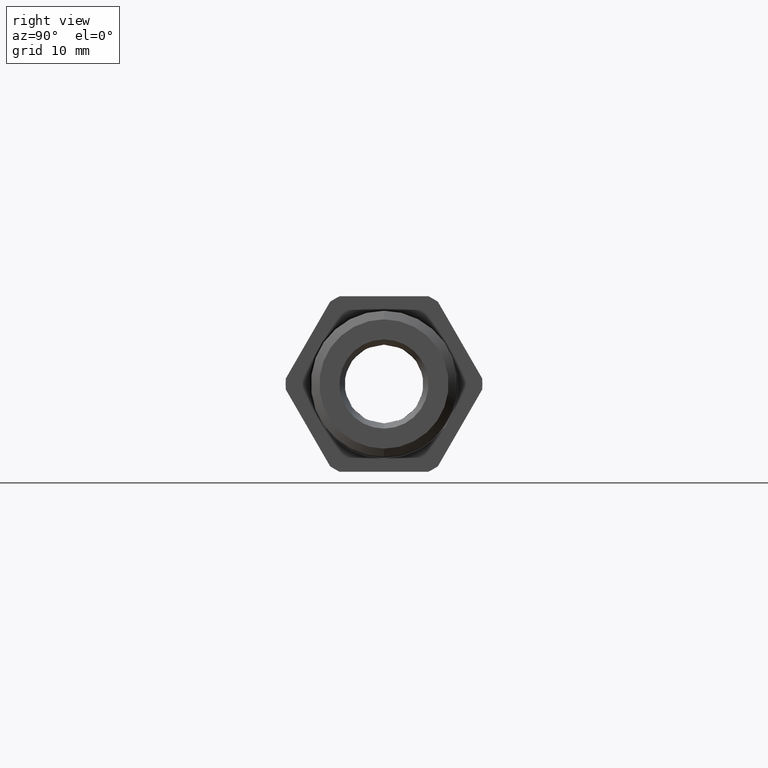
[diagram: clean part render]
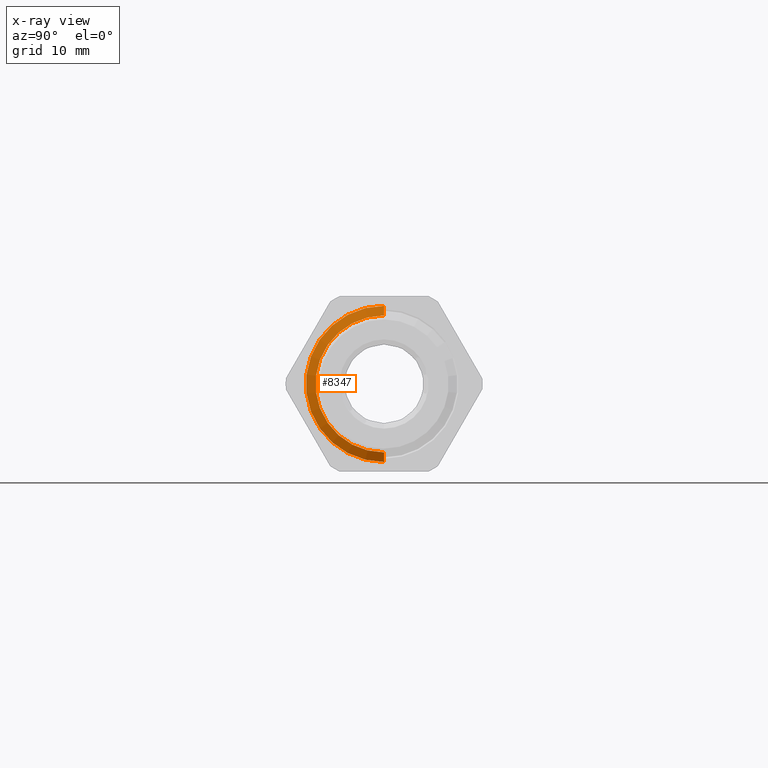
[diagram: x-ray — body ghosted, one internal face saturated and labeled with its STEP entity id]
A machine part, right view, then the same camera in x-ray: the body is ghosted and one INTERNAL B-rep face — a face not visible from any outside direction — is saturated and labeled: STEP entity #8347.
In plain terms, the highlighted conical surface has half-angle 60 deg.
Its self-contained STEP definition (entity closure, byte-faithful):
#1715 = VERTEX_POINT ( 'NONE', #5398 ) ;
#1719 = EDGE_CURVE ( 'NONE', #1726, #1715, #5393, .T. ) ;
#1722 = VERTEX_POINT ( 'NONE', #5448 ) ;
#1723 = VERTEX_POINT ( 'NONE', #5447 ) ;
#1726 = VERTEX_POINT ( 'NONE', #5442 ) ;
#1737 = EDGE_CURVE ( 'NONE', #1723, #1722, #5487, .T. ) ;
#4192 = ORIENTED_EDGE ( 'NONE', *, *, #1737, .T. ) ;
#4200 = ORIENTED_EDGE ( 'NONE', *, *, #1719, .F. ) ;
#4202 = ORIENTED_EDGE ( 'NONE', *, *, #7125, .F. ) ;
#4256 = EDGE_LOOP ( 'NONE', ( #4200, #4202, #4192, #7935 ) ) ;
#5390 = DIRECTION ( 'NONE',  ( -0.4999999999999943400, 1.060575238724910900E-016, -0.8660254037844418200 ) ) ;
#5391 = VECTOR ( 'NONE', #5390, 39.37007874015748100 ) ;
#5392 = CARTESIAN_POINT ( 'NONE',  ( -0.1558333333333333000, 4.738158465901109900E-017, -0.3869000000000000200 ) ) ;
#5393 = LINE ( 'NONE', #5392, #5391 ) ;
#5398 = CARTESIAN_POINT ( 'NONE',  ( -0.1558333333333333000, 4.738158465901109900E-017, -0.3869000000000000200 ) ) ;
#5442 = CARTESIAN_POINT ( 'NONE',  ( -0.1283333461552116600, 0.0000000000000000000, -0.3392686249999999900 ) ) ;
#5447 = CARTESIAN_POINT ( 'NONE',  ( -0.1283333461552116600, 4.446500411237423700E-017, 0.3392686249999999900 ) ) ;
#5448 = CARTESIAN_POINT ( 'NONE',  ( -0.1558333333333333000, 0.0000000000000000000, 0.3869000000000000200 ) ) ;
#5484 = DIRECTION ( 'NONE',  ( -0.4999999999999943400, 0.0000000000000000000, 0.8660254037844418200 ) ) ;
#5485 = VECTOR ( 'NONE', #5484, 39.37007874015748100 ) ;
#5486 = CARTESIAN_POINT ( 'NONE',  ( -0.1558333333333333000, 0.0000000000000000000, 0.3869000000000000200 ) ) ;
#5487 = LINE ( 'NONE', #5486, #5485 ) ;
#6712 = DIRECTION ( 'NONE',  ( 0.0000000000000000000, 0.0000000000000000000, -1.000000000000000000 ) ) ;
#6713 = DIRECTION ( 'NONE',  ( 1.000000000000000000, 0.0000000000000000000, 0.0000000000000000000 ) ) ;
#6714 = CARTESIAN_POINT ( 'NONE',  ( -0.1283333461552116600, 0.0000000000000000000, 0.0000000000000000000 ) ) ;
#6715 = AXIS2_PLACEMENT_3D ( 'NONE', #6714, #6713, #6712 ) ;
#6716 = CIRCLE ( 'NONE', #6715, 0.3392686249999999900 ) ;
#6769 = CONICAL_SURFACE ( 'NONE', #6838, 0.3869000000000000200, 1.047197551196604300 ) ;
#6770 = FACE_OUTER_BOUND ( 'NONE', #4256, .T. ) ;
#6835 = DIRECTION ( 'NONE',  ( 0.0000000000000000000, 0.0000000000000000000, 1.000000000000000000 ) ) ;
#6836 = DIRECTION ( 'NONE',  ( -1.000000000000000000, 0.0000000000000000000, 0.0000000000000000000 ) ) ;
#6837 = CARTESIAN_POINT ( 'NONE',  ( -0.1558333333333333000, 0.0000000000000000000, 0.0000000000000000000 ) ) ;
#6838 = AXIS2_PLACEMENT_3D ( 'NONE', #6837, #6836, #6835 ) ;
#6885 = DIRECTION ( 'NONE',  ( 0.0000000000000000000, 0.0000000000000000000, -1.000000000000000000 ) ) ;
#6886 = DIRECTION ( 'NONE',  ( 1.000000000000000000, 0.0000000000000000000, 0.0000000000000000000 ) ) ;
#6887 = CARTESIAN_POINT ( 'NONE',  ( -0.1558333333333333000, 0.0000000000000000000, 0.0000000000000000000 ) ) ;
#6888 = AXIS2_PLACEMENT_3D ( 'NONE', #6887, #6886, #6885 ) ;
#6889 = CIRCLE ( 'NONE', #6888, 0.3869000000000000200 ) ;
#7125 = EDGE_CURVE ( 'NONE', #1723, #1726, #6716, .T. ) ;
#7935 = ORIENTED_EDGE ( 'NONE', *, *, #9150, .T. ) ;
#8347 = ADVANCED_FACE ( 'NONE', ( #6770 ), #6769, .T. ) ;
#9150 = EDGE_CURVE ( 'NONE', #1722, #1715, #6889, .T. ) ;